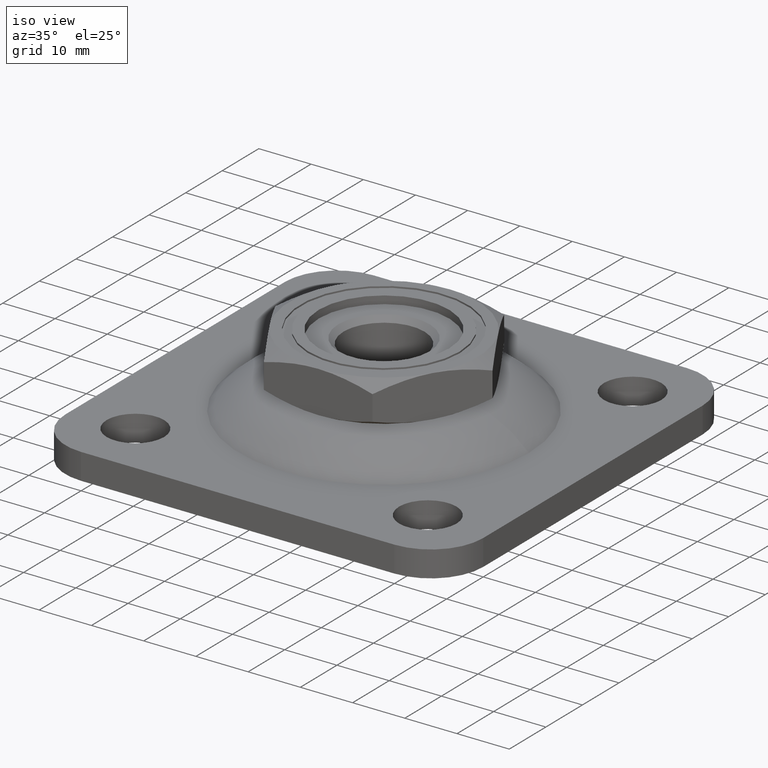
[diagram: clean part render]
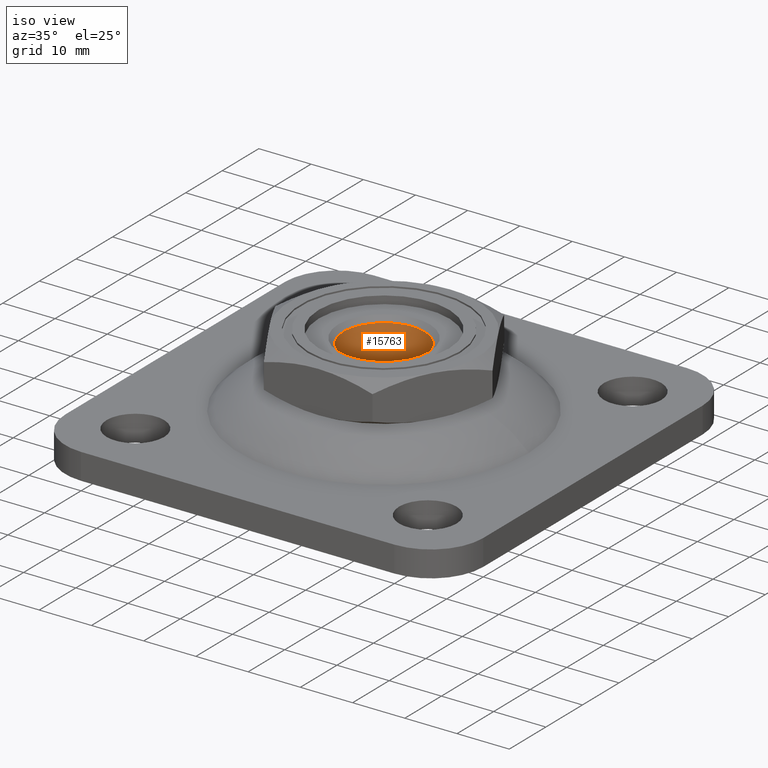
[diagram: same view with one face highlighted and labeled with its STEP entity id]
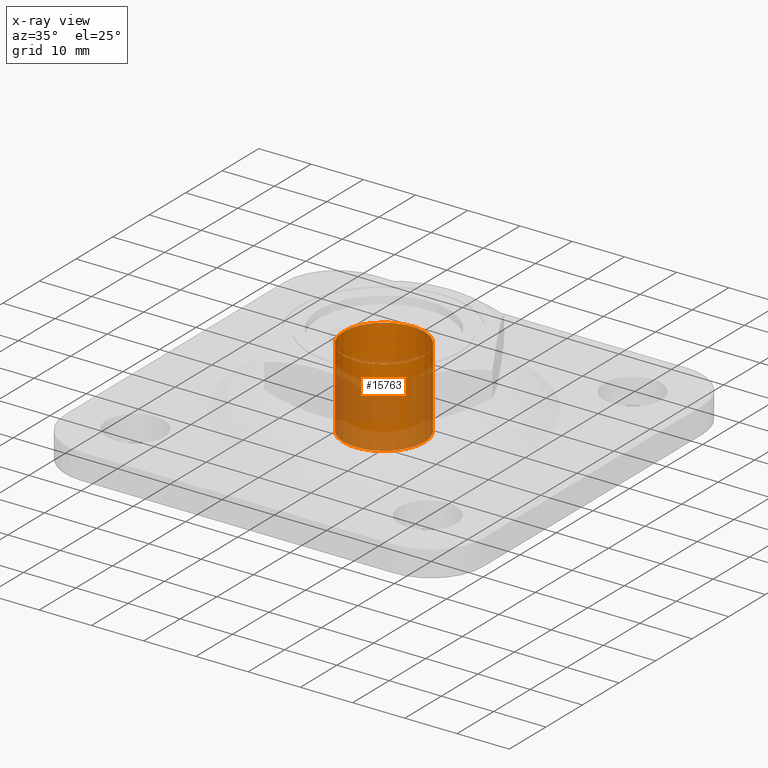
[diagram: x-ray of the same camera — body ghosted, the highlighted face saturated]
A machine part, iso view. The second image highlights one B-rep face of the part: STEP entity #15763.
The next image is the same camera in x-ray: the body ghosted, the highlighted face saturated — about 50% of this face is hidden behind the body in this view.
In plain terms, the highlighted cylindrical surface (bore or boss wall) has radius 7.75 mm, axis along (-0, -0, 1).
Its self-contained STEP definition (entity closure, byte-faithful):
#18 = AXIS2_PLACEMENT_3D ( 'NONE', #10120, #5044, #10164 ) ;
#1213 = AXIS2_PLACEMENT_3D ( 'NONE', #13353, #2333, #15812 ) ;
#1574 = VERTEX_POINT ( 'NONE', #12809 ) ;
#1609 = ORIENTED_EDGE ( 'NONE', *, *, #12990, .T. ) ;
#1835 = EDGE_CURVE ( 'NONE', #1574, #1574, #11405, .T. ) ;
#1961 = DIRECTION ( 'NONE',  ( 1.000000000000000000, 0.000000000000000000, 0.000000000000000000 ) ) ;
#2333 = DIRECTION ( 'NONE',  ( -0.000000000000000000, -0.000000000000000000, 1.000000000000000000 ) ) ;
#2526 = CYLINDRICAL_SURFACE ( 'NONE', #1213, 7.749999999999996447 ) ;
#4562 = ORIENTED_EDGE ( 'NONE', *, *, #1835, .T. ) ;
#5044 = DIRECTION ( 'NONE',  ( 0.000000000000000000, 0.000000000000000000, -1.000000000000000000 ) ) ;
#5283 = FACE_OUTER_BOUND ( 'NONE', #15083, .T. ) ;
#6968 = DIRECTION ( 'NONE',  ( -0.000000000000000000, -0.000000000000000000, 1.000000000000000000 ) ) ;
#7007 = EDGE_LOOP ( 'NONE', ( #1609 ) ) ;
#10120 = CARTESIAN_POINT ( 'NONE',  ( 0.000000000000000000, 0.000000000000000000, 1.499999999999997780 ) ) ;
#10164 = DIRECTION ( 'NONE',  ( -1.000000000000000000, 0.000000000000000000, 0.000000000000000000 ) ) ;
#11178 = CIRCLE ( 'NONE', #18, 7.749999999999996447 ) ;
#11405 = CIRCLE ( 'NONE', #15005, 7.749999999999996447 ) ;
#12809 = CARTESIAN_POINT ( 'NONE',  ( 7.749999999999996447, 0.000000000000000000, 16.49999999999998579 ) ) ;
#12990 = EDGE_CURVE ( 'NONE', #14060, #14060, #11178, .T. ) ;
#13353 = CARTESIAN_POINT ( 'NONE',  ( 0.000000000000000000, 0.000000000000000000, 19.00000000000000000 ) ) ;
#13356 = CARTESIAN_POINT ( 'NONE',  ( 0.000000000000000000, 0.000000000000000000, 16.49999999999998579 ) ) ;
#14060 = VERTEX_POINT ( 'NONE', #15199 ) ;
#15005 = AXIS2_PLACEMENT_3D ( 'NONE', #13356, #6968, #1961 ) ;
#15083 = EDGE_LOOP ( 'NONE', ( #4562 ) ) ;
#15199 = CARTESIAN_POINT ( 'NONE',  ( -7.749999999999996447, 0.000000000000000000, 1.499999999999997780 ) ) ;
#15763 = ADVANCED_FACE ( 'NONE', ( #5283, #15994 ), #2526, .F. ) ;
#15812 = DIRECTION ( 'NONE',  ( 1.000000000000000000, 0.000000000000000000, 0.000000000000000000 ) ) ;
#15994 = FACE_OUTER_BOUND ( 'NONE', #7007, .T. ) ;